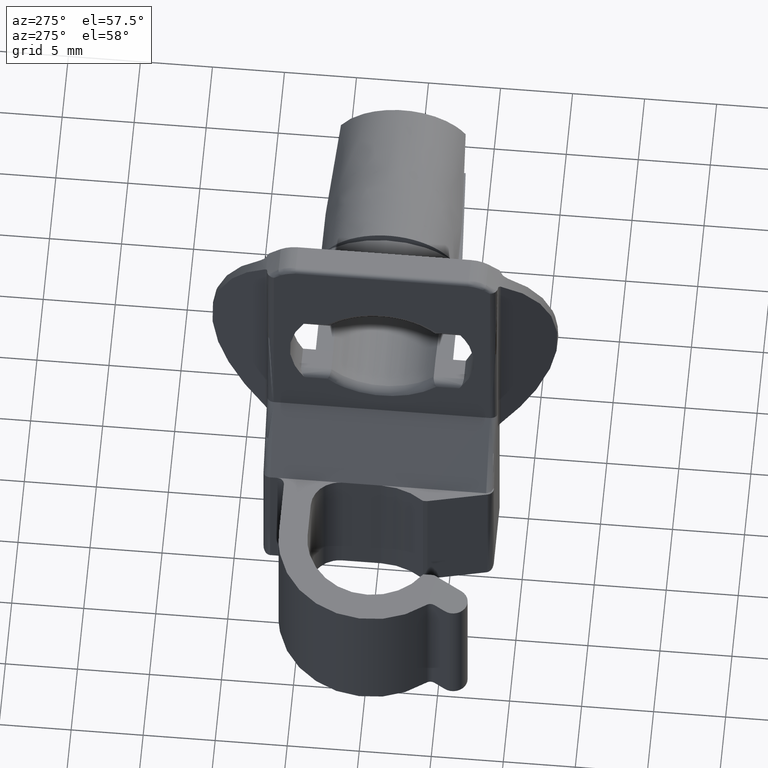
[diagram: clean part render]
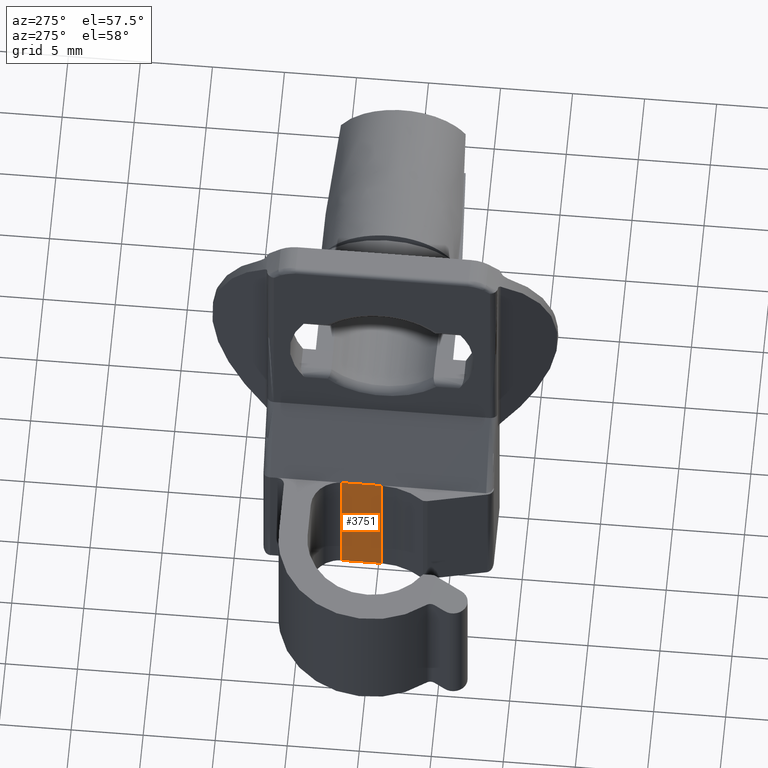
[diagram: same view with one face highlighted and labeled with its STEP entity id]
A machine part, auxiliary view. The second image highlights one B-rep face of the part: STEP entity #3751.
In plain terms, the highlighted face is a freeform B-spline surface patch.
Its self-contained STEP definition (entity closure, byte-faithful):
#3120=CARTESIAN_POINT('',(-4.999901000000000,2.500000000000000,-12.000001999999959));
#3121=VERTEX_POINT('',#3120);
#3127=CARTESIAN_POINT('',(-4.999901000000000,-0.199999000000006,-12.000001999999959));
#3128=VERTEX_POINT('',#3127);
#3129=CARTESIAN_POINT('',(-4.999901000000000,2.500000000000000,-12.000001999999959));
#3130=CARTESIAN_POINT('',(-4.999901000000000,-0.199999000000006,-12.000001999999959));
#3131=QUASI_UNIFORM_CURVE('',1,(#3129,#3130),.UNSPECIFIED.,.F.,.U.);
#3132=EDGE_CURVE('',#3121,#3128,#3131,.T.);
#3400=CARTESIAN_POINT('',(-4.999901000000000,-0.199999000000006,-22.000000000004000));
#3401=VERTEX_POINT('',#3400);
#3412=CARTESIAN_POINT('',(-4.999901000000000,2.500000000000000,-22.000000000004000));
#3413=VERTEX_POINT('',#3412);
#3414=CARTESIAN_POINT('',(-4.999901000000000,2.500000000000000,-22.000000000004000));
#3415=CARTESIAN_POINT('',(-4.999901000000000,-0.199999000000006,-22.000000000004000));
#3416=QUASI_UNIFORM_CURVE('',1,(#3414,#3415),.UNSPECIFIED.,.F.,.U.);
#3417=EDGE_CURVE('',#3413,#3401,#3416,.T.);
#3716=CARTESIAN_POINT('',(-4.999901000000000,-0.199999000000006,-22.000000000004000));
#3717=CARTESIAN_POINT('',(-4.999901000000000,-0.199999000000006,-12.000001999999959));
#3718=QUASI_UNIFORM_CURVE('',1,(#3716,#3717),.UNSPECIFIED.,.F.,.U.);
#3719=EDGE_CURVE('',#3401,#3128,#3718,.T.);
#3736=CARTESIAN_POINT('',(-4.999901000000000,-0.334863970162543,-22.499499880722269));
#3737=CARTESIAN_POINT('',(-4.999901000000000,-0.334863970162543,-11.500501851060850));
#3738=CARTESIAN_POINT('',(-4.999901000000000,2.634865018442282,-22.499499880722269));
#3739=CARTESIAN_POINT('',(-4.999901000000000,2.634865018442282,-11.500501851060850));
#3740=B_SPLINE_SURFACE_WITH_KNOTS('',1,1,((#3736,#3738),(#3737,#3739)),.UNSPECIFIED.,.F.,.F.,.U.,(2,2),(2,2),(0.0,10.998998029661429),(0.0,2.969728988604825),.UNSPECIFIED.);
#3741=ORIENTED_EDGE('',*,*,#3132,.F.);
#3742=CARTESIAN_POINT('',(-4.999901000000000,2.500000000000000,-22.000000000004000));
#3743=CARTESIAN_POINT('',(-4.999901000000000,2.500000000000000,-12.000001999999959));
#3744=QUASI_UNIFORM_CURVE('',1,(#3742,#3743),.UNSPECIFIED.,.F.,.U.);
#3745=EDGE_CURVE('',#3413,#3121,#3744,.T.);
#3746=ORIENTED_EDGE('',*,*,#3745,.F.);
#3747=ORIENTED_EDGE('',*,*,#3417,.T.);
#3748=ORIENTED_EDGE('',*,*,#3719,.T.);
#3749=EDGE_LOOP('',(#3741,#3746,#3747,#3748));
#3750=FACE_OUTER_BOUND('',#3749,.T.);
#3751=ADVANCED_FACE('',(#3750),#3740,.T.);